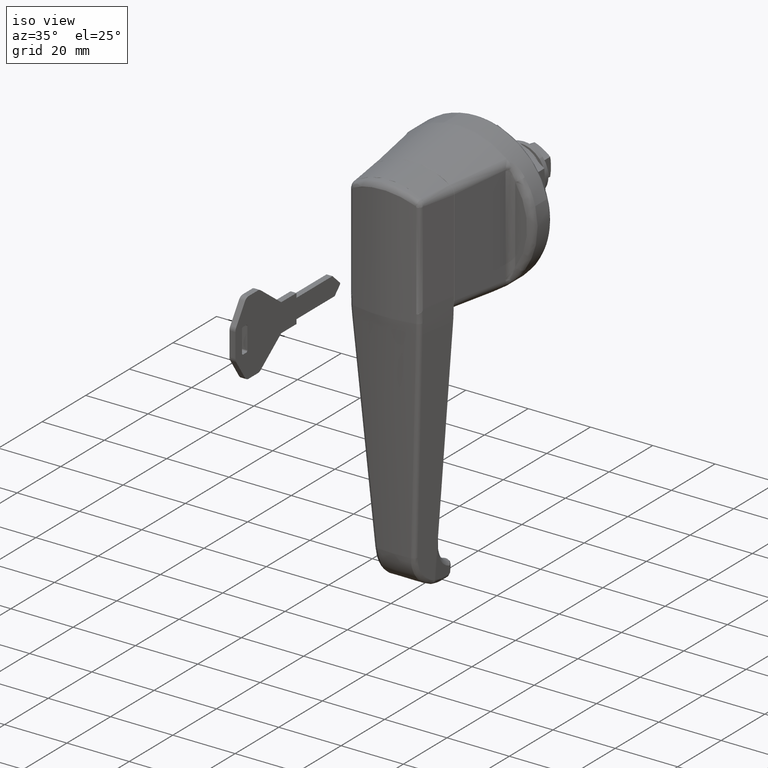
[diagram: clean part render]
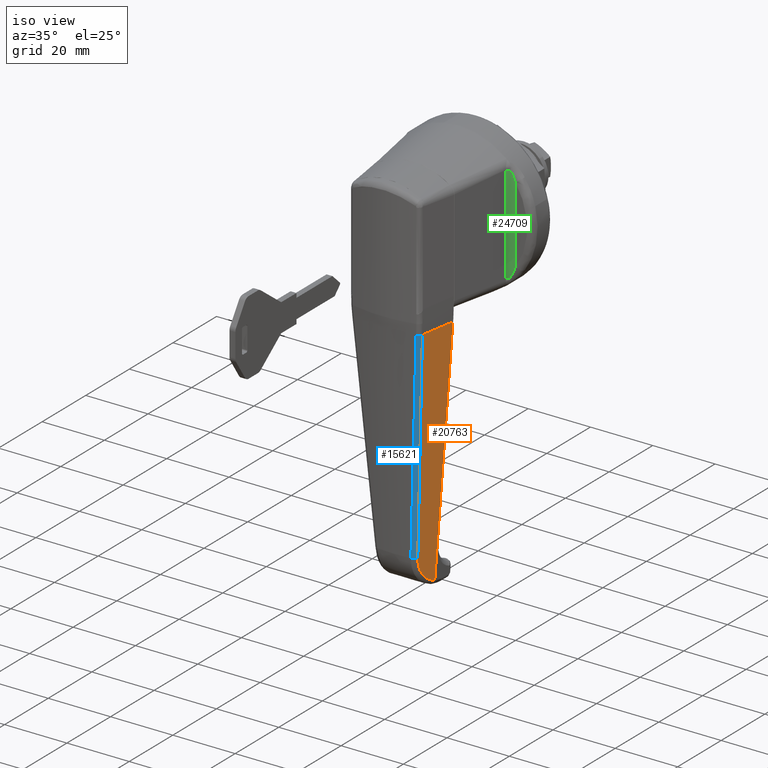
[diagram: same view with three faces highlighted in distinct colors, each labeled with its STEP entity id]
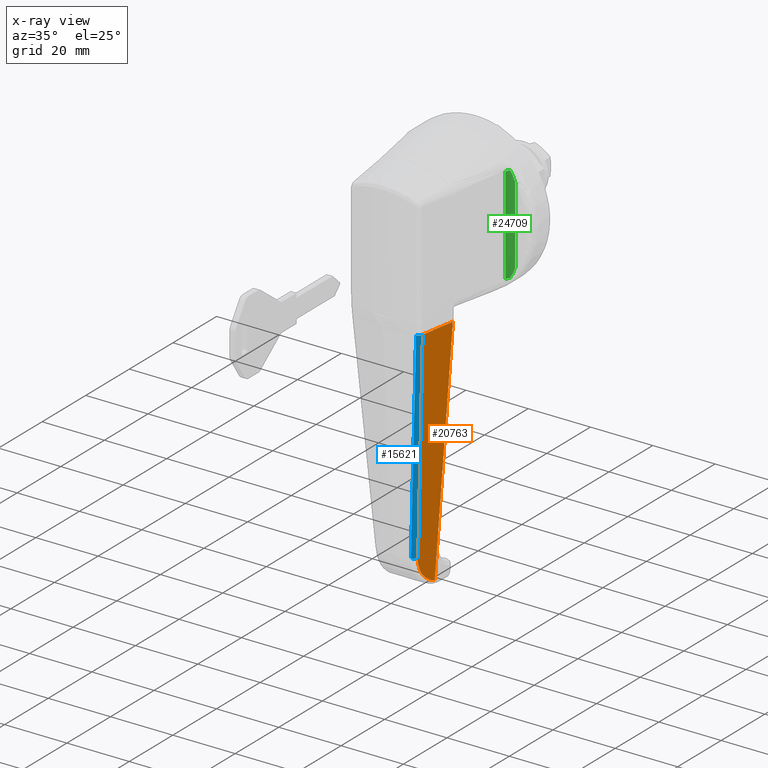
[diagram: x-ray of the same camera — body ghosted, the three highlighted faces saturated]
A machine part, iso view with three faces highlighted in distinct colors.
The next image is the same camera in x-ray (body ghosted, the three faces saturated) — at least one of them is partly hidden behind the body in this view.
Their STEP definitions:

[orange] entity #20763 — the highlighted face is a freeform B-spline surface patch.
#13989=CARTESIAN_POINT('',(-30.115816610478099,-7.131476740235530,-98.037802394413404));
#13990=VERTEX_POINT('',#13989);
#14073=CARTESIAN_POINT('',(-30.115816610478252,-12.947967099860200,-21.472112417346651));
#14074=VERTEX_POINT('',#14073);
#14083=CARTESIAN_POINT('',(-30.115816610478099,-7.131476740235530,-98.037802394413404));
#14084=CARTESIAN_POINT('',(-30.115816610478252,-12.947967099860200,-21.472112417346651));
#14085=QUASI_UNIFORM_CURVE('',1,(#14083,#14084),.UNSPECIFIED.,.F.,.U.);
#14086=EDGE_CURVE('',#13990,#14074,#14085,.T.);
#14305=CARTESIAN_POINT('',(-37.268667890630063,-6.699473645642841,-88.874029851411009));
#14306=VERTEX_POINT('',#14305);
#14351=CARTESIAN_POINT('',(-37.268667890630113,-6.699473645642881,-88.874029851410810));
#14352=CARTESIAN_POINT('',(-37.234511700938903,-6.665577533822186,-89.391136919051164));
#14353=CARTESIAN_POINT('',(-37.161571387783297,-6.638293454256687,-89.901728211658309));
#14354=CARTESIAN_POINT('',(-37.022479209134353,-6.612357350621833,-90.531917254916820));
#14355=CARTESIAN_POINT('',(-36.992252415087179,-6.607580713954900,-90.657550456745014));
#14356=CARTESIAN_POINT('',(-36.926945856935397,-6.598854789331897,-90.908001556139965));
#14357=CARTESIAN_POINT('',(-36.891798357913352,-6.594899631271147,-91.033037353727934));
#14358=CARTESIAN_POINT('',(-36.779530070470692,-6.584337507383488,-91.405159461354472));
#14359=CARTESIAN_POINT('',(-36.695751539933667,-6.579035636826096,-91.648888620982390));
#14360=CARTESIAN_POINT('',(-36.418393369447010,-6.568197463672362,-92.367397651417633));
#14361=CARTESIAN_POINT('',(-36.198927000456699,-6.567702145233937,-92.829565261110830));
#14362=CARTESIAN_POINT('',(-35.818358362706697,-6.576962391219464,-93.497789168199887));
#14363=CARTESIAN_POINT('',(-35.682906253002933,-6.581723039319853,-93.716342467558633));
#14364=CARTESIAN_POINT('',(-35.466576174668411,-6.591425114841250,-94.037764678853193));
#14365=CARTESIAN_POINT('',(-35.392133823109987,-6.595093961845133,-94.144023897451888));
#14366=CARTESIAN_POINT('',(-35.239446113145902,-6.603264433240947,-94.353475677305880));
#14367=CARTESIAN_POINT('',(-35.161396568821800,-6.607754303572170,-94.456416422276718));
#14368=CARTESIAN_POINT('',(-34.762788601264347,-6.632186926722162,-94.962370458368994));
#14369=CARTESIAN_POINT('',(-34.417284290453622,-6.658047503979547,-95.339275815127024));
#14370=CARTESIAN_POINT('',(-33.675057287925704,-6.721919013349146,-96.039482257287133));
#14371=CARTESIAN_POINT('',(-33.278328938604979,-6.759931287594582,-96.362777421539278));
#14372=CARTESIAN_POINT('',(-32.749630798784239,-6.815224740941781,-96.732581333958677));
#14373=CARTESIAN_POINT('',(-32.642247789917612,-6.826674931643870,-96.804800507188105));
#14374=CARTESIAN_POINT('',(-32.425854695826203,-6.850177935034837,-96.944684278108767));
#14375=CARTESIAN_POINT('',(-32.316639904694952,-6.862251891206397,-97.012495554771533));
#14376=CARTESIAN_POINT('',(-31.985987190248149,-6.899426432122554,-97.209634628910692));
#14377=CARTESIAN_POINT('',(-31.761544706008120,-6.925478492188768,-97.332675580208246));
#14378=CARTESIAN_POINT('',(-31.076422190468939,-7.007369897424195,-97.677118040700108));
#14379=CARTESIAN_POINT('',(-30.604003508036389,-7.066926603346877,-97.873957194236880));
#14380=CARTESIAN_POINT('',(-30.115816610478049,-7.131476740235520,-98.037802394413404));
#14381=B_SPLINE_CURVE_WITH_KNOTS('',3,(#14351,#14352,#14353,#14354,#14355,#14356,#14357,#14358,#14359,#14360,#14361,#14362,#14363,#14364,#14365,#14366,#14367,#14368,#14369,#14370,#14371,#14372,#14373,#14374,#14375,#14376,#14377,#14378,#14379,#14380),.UNSPECIFIED.,.F.,.U.,(4,2,2,2,2,2,2,2,2,2,2,2,2,2,4),(0.0,0.124999999999999,0.156249999999999,0.187500000000000,0.250000000000001,0.375000000000006,0.437500000000009,0.468750000000008,0.500000000000008,0.625000000000006,0.750000000000004,0.781250000000003,0.812500000000003,0.875000000000003,1.0),.UNSPECIFIED.);
#14382=EDGE_CURVE('',#14306,#13990,#14381,.T.);
#15349=CARTESIAN_POINT('',(-41.510032861910602,-11.156030345127100,-21.404145801841949));
#15350=VERTEX_POINT('',#15349);
#15605=CARTESIAN_POINT('',(-41.510032861910602,-11.156030345127100,-21.404145801841949));
#15606=CARTESIAN_POINT('',(-39.530309244699815,-8.943894025343081,-54.633948061544835));
#15607=CARTESIAN_POINT('',(-37.268667890630049,-6.699473645642828,-88.874029851410938));
#15615=(BOUNDED_CURVE()B_SPLINE_CURVE(2,(#15605,#15606,#15607),.UNSPECIFIED.,.F.,.U.)CURVE()GEOMETRIC_REPRESENTATION_ITEM()QUASI_UNIFORM_CURVE()RATIONAL_B_SPLINE_CURVE((1.0,0.998918431768087,1.0))REPRESENTATION_ITEM(''));
#15616=EDGE_CURVE('',#15350,#14306,#15615,.T.);
#20748=CARTESIAN_POINT('',(-28.606851601803179,-7.078679563445426,-101.865654831445300));
#20749=CARTESIAN_POINT('',(-41.138476132721273,-5.102187112981529,-101.865654831445300));
#20750=CARTESIAN_POINT('',(-29.592259780949121,-13.326497665586020,-17.576292679651761));
#20751=CARTESIAN_POINT('',(-42.123884311867208,-11.350005215122120,-17.576292679651761));
#20752=B_SPLINE_SURFACE_WITH_KNOTS('',1,1,((#20748,#20750),(#20749,#20751)),.UNSPECIFIED.,.F.,.F.,.U.,(2,2),(2,2),(0.0,12.686533639676711),(0.0,84.526344013409059),.UNSPECIFIED.);
#20753=ORIENTED_EDGE('',*,*,#14382,.T.);
#20754=ORIENTED_EDGE('',*,*,#14086,.T.);
#20755=CARTESIAN_POINT('',(-30.115816610478252,-12.947967099860200,-21.472112417346651));
#20756=CARTESIAN_POINT('',(-41.510032861910602,-11.156030345127100,-21.404145801841949));
#20757=QUASI_UNIFORM_CURVE('',1,(#20755,#20756),.UNSPECIFIED.,.F.,.U.);
#20758=EDGE_CURVE('',#14074,#15350,#20757,.T.);
#20759=ORIENTED_EDGE('',*,*,#20758,.T.);
#20760=ORIENTED_EDGE('',*,*,#15616,.T.);
#20761=EDGE_LOOP('',(#20753,#20754,#20759,#20760));
#20762=FACE_OUTER_BOUND('',#20761,.T.);
#20763=ADVANCED_FACE('',(#20762),#20752,.F.);

[blue] entity #15621 — the highlighted face is a freeform B-spline surface patch.
#14303=CARTESIAN_POINT('',(-38.522935377319541,-5.383446942940070,-88.870612396524308));
#14304=VERTEX_POINT('',#14303);
#14305=CARTESIAN_POINT('',(-37.268667890630063,-6.699473645642841,-88.874029851411009));
#14306=VERTEX_POINT('',#14305);
#14307=CARTESIAN_POINT('',(-38.522935377319541,-5.383446942940070,-88.870612396524308));
#14308=CARTESIAN_POINT('',(-38.498221518907769,-5.605556951390951,-88.883539186478174));
#14309=CARTESIAN_POINT('',(-38.367218872823429,-5.979174200849115,-88.899376565908128));
#14310=CARTESIAN_POINT('',(-38.013395048061057,-6.381818975596802,-88.902398800046640));
#14311=CARTESIAN_POINT('',(-37.644634647636458,-6.605830856878371,-88.892725139167865));
#14312=CARTESIAN_POINT('',(-37.388980990481947,-6.680009213165958,-88.880700942751645));
#14313=CARTESIAN_POINT('',(-37.268667890630063,-6.699473645642841,-88.874029851411009));
#14314=B_SPLINE_CURVE_WITH_KNOTS('',3,(#14307,#14308,#14309,#14310,#14311,#14312,#14313),.UNSPECIFIED.,.F.,.U.,(4,1,1,1,4),(0.000000190302992,0.671432463942115,1.159693123842232,1.586991030517195,1.953202127505940),.UNSPECIFIED.);
#14315=EDGE_CURVE('',#14304,#14306,#14314,.T.);
#15347=CARTESIAN_POINT('',(-42.742906756508162,-9.977835292923841,-21.399162970487851));
#15348=VERTEX_POINT('',#15347);
#15349=CARTESIAN_POINT('',(-41.510032861910602,-11.156030345127100,-21.404145801841949));
#15350=VERTEX_POINT('',#15349);
#15351=CARTESIAN_POINT('',(-42.742906756508162,-9.977835292923841,-21.399162970487851));
#15352=CARTESIAN_POINT('',(-42.716019487649547,-10.107136721640201,-21.406168820949500));
#15353=CARTESIAN_POINT('',(-42.621473431013591,-10.376694288909620,-21.418480751679500));
#15354=CARTESIAN_POINT('',(-42.366244845900439,-10.734438412334990,-21.427090393971248));
#15355=CARTESIAN_POINT('',(-41.985774293219571,-11.023444760447530,-21.423662594473839));
#15356=CARTESIAN_POINT('',(-41.677751368848590,-11.129078156335421,-21.412343695147960));
#15357=CARTESIAN_POINT('',(-41.510032861910602,-11.156030345127100,-21.404145801841949));
#15358=B_SPLINE_CURVE_WITH_KNOTS('',3,(#15351,#15352,#15353,#15354,#15355,#15356,#15357),.UNSPECIFIED.,.F.,.U.,(4,1,1,1,4),(0.000000218921510,0.396798161404612,0.850305664614995,1.303770061182126,1.813944018476610),.UNSPECIFIED.);
#15359=EDGE_CURVE('',#15348,#15350,#15358,.T.);
#15543=CARTESIAN_POINT('',(-37.237125710164825,-6.678496078781409,-89.215655840370360));
#15544=CARTESIAN_POINT('',(-37.244659285805930,-6.685971228269136,-89.101615386005719));
#15545=CARTESIAN_POINT('',(-37.252192868495783,-6.693446384750907,-88.987574824940509));
#15546=CARTESIAN_POINT('',(-38.766586132164804,-8.196094870463741,-66.063255205343651));
#15547=CARTESIAN_POINT('',(-40.182596160035438,-9.683725950383614,-43.540877442115068));
#15548=CARTESIAN_POINT('',(-41.508235625249348,-11.164754178192863,-21.293040498828134));
#15549=CARTESIAN_POINT('',(-41.514831431021108,-11.172123130905497,-21.182344932521243));
#15550=CARTESIAN_POINT('',(-41.521427242582533,-11.179492090086406,-21.071649269048972));
#15551=CARTESIAN_POINT('',(-37.241592153764664,-6.677771570862017,-89.215919885285146));
#15552=CARTESIAN_POINT('',(-37.249125634648081,-6.685247155923113,-89.101873893958825));
#15553=CARTESIAN_POINT('',(-37.256659119059400,-6.692722744485002,-88.987827849225042));
#15554=CARTESIAN_POINT('',(-38.770961142903467,-8.195387151896261,-66.063488072013769));
#15555=CARTESIAN_POINT('',(-40.186880226701362,-9.683033657970618,-43.541096060269759));
#15556=CARTESIAN_POINT('',(-41.512427680134927,-11.164077087263141,-21.293250042672430));
#15557=CARTESIAN_POINT('',(-41.519022736025889,-11.171445789279675,-21.182559333290762));
#15558=CARTESIAN_POINT('',(-41.525617794813904,-11.178814494533103,-21.071868575285524));
#15559=CARTESIAN_POINT('',(-38.372692973169443,-6.494294161380218,-89.282787721577918));
#15560=CARTESIAN_POINT('',(-38.380135264684768,-6.501890945929459,-89.167335637918029));
#15561=CARTESIAN_POINT('',(-38.387576678984004,-6.509486835052640,-89.051897162489880));
#15562=CARTESIAN_POINT('',(-39.865703181290030,-8.018297468364636,-66.121757399420758));
#15563=CARTESIAN_POINT('',(-41.246798416587019,-9.511754035484183,-43.595184237903354));
#15564=CARTESIAN_POINT('',(-42.538350872216121,-10.998372365619550,-21.344531787665975));
#15565=CARTESIAN_POINT('',(-42.544707149699768,-11.005688645014498,-21.235026888697721));
#15566=CARTESIAN_POINT('',(-42.551062747933912,-11.013004142571472,-21.125533691727682));
#15567=CARTESIAN_POINT('',(-38.500917636084395,-5.355819356173474,-89.212494289567957));
#15568=CARTESIAN_POINT('',(-38.508426338986169,-5.363526767493478,-89.098446464202667));
#15569=CARTESIAN_POINT('',(-38.515935045405115,-5.371234182423731,-88.984398585415903));
#15570=CARTESIAN_POINT('',(-40.025256474703198,-6.920497913040206,-66.059689878670724));
#15571=CARTESIAN_POINT('',(-41.434062004667204,-8.454283796238441,-43.536773060214266));
#15572=CARTESIAN_POINT('',(-42.750322664999409,-9.981267222526808,-21.288243273175141));
#15573=CARTESIAN_POINT('',(-42.756871515962430,-9.988864491960708,-21.177549160593237));
#15574=CARTESIAN_POINT('',(-42.763420369802937,-9.996461764732715,-21.066854999374286));
#15575=CARTESIAN_POINT('',(-38.501424088396405,-5.351322692394742,-89.212216649757053));
#15576=CARTESIAN_POINT('',(-38.508933083708612,-5.359030273541825,-89.098174354662660));
#15577=CARTESIAN_POINT('',(-38.516442086048265,-5.366737861902196,-88.984131952839590));
#15578=CARTESIAN_POINT('',(-40.025894267435213,-6.916109607649243,-66.059441772142861));
#15579=CARTESIAN_POINT('',(-41.434819088008453,-8.450008575891713,-43.536536911104776));
#15580=CARTESIAN_POINT('',(-42.751189021562034,-9.977110180195579,-21.288013214622108));
#15581=CARTESIAN_POINT('',(-42.757738706316523,-9.984708374169252,-21.177314228911431));
#15582=CARTESIAN_POINT('',(-42.764288396821520,-9.992306574814039,-21.066615146008370));
#15590=(BOUNDED_SURFACE()B_SPLINE_SURFACE(3,2,((#15543,#15551,#15559,#15567,#15575),(#15544,#15552,#15560,#15568,#15576),(#15545,#15553,#15561,#15569,#15577),(#15546,#15554,#15562,#15570,#15578),(#15547,#15555,#15563,#15571,#15579),(#15548,#15556,#15564,#15572,#15580),(#15549,#15557,#15565,#15573,#15581),(#15550,#15558,#15566,#15574,#15582)),.UNSPECIFIED.,.F.,.F.,.U.)B_SPLINE_SURFACE_WITH_KNOTS((4,2,2,4),(3,1,1,3),(0.0,0.345510551890762,69.447622474601033,69.793133026491304),(0.0,0.010129404798273,2.036007908977302,2.046139814565227),.UNSPECIFIED.)GEOMETRIC_REPRESENTATION_ITEM()RATIONAL_B_SPLINE_SURFACE(((1.002046762988405,1.001023381494202,0.795323949238071,1.001023634150889,1.002047268301778),(1.002046294212043,1.001023147106021,0.795370826817491,1.001023399704841,1.002046799409682),(1.002045825435680,1.001022912717840,0.795417704396912,1.001023165258793,1.002046330517586),(1.001951601384745,1.000975800692373,0.804840098069982,1.000976041602112,1.001952083204225),(1.001860707936003,1.000930353968002,0.813929431927400,1.000930583657665,1.001861167315329),(1.001772335633721,1.000886167816861,0.822766651444375,1.000886386597663,1.001772773195326),(1.001771895970536,1.000885947985268,0.822810617709651,1.000886166711797,1.001772333423594),(1.001771456307350,1.000885728153675,0.822854583974926,1.000885946825931,1.001771893651863)))REPRESENTATION_ITEM('')SURFACE());
#15591=CARTESIAN_POINT('',(-38.522935377319541,-5.383446942940070,-88.870612396524308));
#15592=CARTESIAN_POINT('',(-40.777079227849484,-7.697282385930354,-54.629982011748901));
#15593=CARTESIAN_POINT('',(-42.742906756508162,-9.977835292923841,-21.399162970487851));
#15601=(BOUNDED_CURVE()B_SPLINE_CURVE(2,(#15591,#15592,#15593),.UNSPECIFIED.,.F.,.U.)CURVE()GEOMETRIC_REPRESENTATION_ITEM()QUASI_UNIFORM_CURVE()RATIONAL_B_SPLINE_CURVE((1.0,0.998918431768048,1.0))REPRESENTATION_ITEM(''));
#15602=EDGE_CURVE('',#14304,#15348,#15601,.T.);
#15603=ORIENTED_EDGE('',*,*,#15602,.F.);
#15604=ORIENTED_EDGE('',*,*,#14315,.T.);
#15605=CARTESIAN_POINT('',(-41.510032861910602,-11.156030345127100,-21.404145801841949));
#15606=CARTESIAN_POINT('',(-39.530309244699815,-8.943894025343081,-54.633948061544835));
#15607=CARTESIAN_POINT('',(-37.268667890630049,-6.699473645642828,-88.874029851410938));
#15615=(BOUNDED_CURVE()B_SPLINE_CURVE(2,(#15605,#15606,#15607),.UNSPECIFIED.,.F.,.U.)CURVE()GEOMETRIC_REPRESENTATION_ITEM()QUASI_UNIFORM_CURVE()RATIONAL_B_SPLINE_CURVE((1.0,0.998918431768087,1.0))REPRESENTATION_ITEM(''));
#15616=EDGE_CURVE('',#15350,#14306,#15615,.T.);
#15617=ORIENTED_EDGE('',*,*,#15616,.F.);
#15618=ORIENTED_EDGE('',*,*,#15359,.F.);
#15619=EDGE_LOOP('',(#15603,#15604,#15617,#15618));
#15620=FACE_OUTER_BOUND('',#15619,.T.);
#15621=ADVANCED_FACE('',(#15620),#15590,.T.);

[green] entity #24709 — the highlighted face is a freeform B-spline surface patch.
#23645=CARTESIAN_POINT('',(-9.0,-18.214367857161601,-12.338427921092579));
#23646=VERTEX_POINT('',#23645);
#23658=CARTESIAN_POINT('',(-9.538265775147300,-16.849328276821801,-15.628077410993299));
#23659=VERTEX_POINT('',#23658);
#23660=CARTESIAN_POINT('',(-9.538265775147300,-16.849328276821801,-15.628077410993299));
#23661=CARTESIAN_POINT('',(-9.479343540917173,-16.912424356686039,-15.503046303130111));
#23662=CARTESIAN_POINT('',(-9.428121561478310,-16.975351562211980,-15.375312474083479));
#23663=CARTESIAN_POINT('',(-9.337264672987585,-17.100242892471819,-15.115439620415870));
#23664=CARTESIAN_POINT('',(-9.297663012976106,-17.162212819953080,-14.983292041964731));
#23665=CARTESIAN_POINT('',(-9.227729767721215,-17.284830518755360,-14.715209382234340));
#23666=CARTESIAN_POINT('',(-9.197458739021194,-17.345425396081161,-14.579376786982619));
#23667=CARTESIAN_POINT('',(-9.144892840534990,-17.464172265931381,-14.306491572769430));
#23668=CARTESIAN_POINT('',(-9.122528787336250,-17.522457508241459,-14.169151556969391));
#23669=CARTESIAN_POINT('',(-9.065103357175561,-17.694053218810708,-13.754686375052509));
#23670=CARTESIAN_POINT('',(-9.039607650166325,-17.804100736040319,-13.475126753863909));
#23671=CARTESIAN_POINT('',(-9.007016933211888,-18.015682750886921,-12.910425391445029));
#23672=CARTESIAN_POINT('',(-9.000000000000002,-18.117274253986750,-12.625093064515120));
#23673=CARTESIAN_POINT('',(-9.0,-18.214367857161601,-12.338427921092601));
#23674=B_SPLINE_CURVE_WITH_KNOTS('',3,(#23660,#23661,#23662,#23663,#23664,#23665,#23666,#23667,#23668,#23669,#23670,#23671,#23672,#23673),.UNSPECIFIED.,.F.,.U.,(4,2,2,2,2,2,4),(0.0,0.125000000000000,0.250000000000001,0.375000000000001,0.500000000000001,0.750000000000001,1.0),.UNSPECIFIED.);
#23675=EDGE_CURVE('',#23659,#23646,#23674,.T.);
#23704=CARTESIAN_POINT('',(-9.0,-18.214367857161601,12.338427921092579));
#23705=VERTEX_POINT('',#23704);
#23824=CARTESIAN_POINT('',(-9.538265775147291,-16.849328276821801,15.628077410993299));
#23825=VERTEX_POINT('',#23824);
#23835=CARTESIAN_POINT('',(-9.0,-18.214367857161601,12.338427921092579));
#23836=CARTESIAN_POINT('',(-9.000000000000002,-18.117274253986739,12.625093064515100));
#23837=CARTESIAN_POINT('',(-9.007016933211888,-18.015682750886921,12.910425391445029));
#23838=CARTESIAN_POINT('',(-9.039607650166325,-17.804100736040319,13.475126753863909));
#23839=CARTESIAN_POINT('',(-9.065103357175559,-17.694053218810701,13.754686375052520));
#23840=CARTESIAN_POINT('',(-9.122528787336252,-17.522457508241459,14.169151556969400));
#23841=CARTESIAN_POINT('',(-9.144892840534991,-17.464172265931388,14.306491572769440));
#23842=CARTESIAN_POINT('',(-9.197458739021199,-17.345425396081151,14.579376786982630));
#23843=CARTESIAN_POINT('',(-9.227729767721216,-17.284830518755360,14.715209382234340));
#23844=CARTESIAN_POINT('',(-9.297663012976104,-17.162212819953069,14.983292041964731));
#23845=CARTESIAN_POINT('',(-9.337264672987587,-17.100242892471840,15.115439620415870));
#23846=CARTESIAN_POINT('',(-9.428121561478308,-16.975351562211980,15.375312474083479));
#23847=CARTESIAN_POINT('',(-9.479343540917167,-16.912424356686032,15.503046303130111));
#23848=CARTESIAN_POINT('',(-9.538265775147291,-16.849328276821801,15.628077410993299));
#23849=B_SPLINE_CURVE_WITH_KNOTS('',3,(#23835,#23836,#23837,#23838,#23839,#23840,#23841,#23842,#23843,#23844,#23845,#23846,#23847,#23848),.UNSPECIFIED.,.F.,.U.,(4,2,2,2,2,2,4),(0.0,0.250000000000000,0.500000000000000,0.625000000000000,0.750000000000000,0.875000000000000,1.0),.UNSPECIFIED.);
#23850=EDGE_CURVE('',#23705,#23825,#23849,.T.);
#24650=CARTESIAN_POINT('',(-10.694119587181600,-16.237896968670150,-15.628077410993299));
#24651=VERTEX_POINT('',#24650);
#24652=CARTESIAN_POINT('',(-9.538265775147300,-16.849328276821801,-15.628077410993299));
#24653=CARTESIAN_POINT('',(-9.727440008139677,-16.646171008606480,-15.628077410993299));
#24654=CARTESIAN_POINT('',(-10.099272586250930,-16.386348656709039,-15.628077410993271));
#24655=CARTESIAN_POINT('',(-10.529559988056320,-16.263333971277842,-15.628077410993340));
#24656=CARTESIAN_POINT('',(-10.694119587181600,-16.237896968670150,-15.628077410993299));
#24657=B_SPLINE_CURVE_WITH_KNOTS('',3,(#24652,#24653,#24654,#24655,#24656),.UNSPECIFIED.,.F.,.U.,(4,1,4),(0.000000061920674,0.832565921577420,1.332121530724416),.UNSPECIFIED.);
#24658=EDGE_CURVE('',#23659,#24651,#24657,.T.);
#24670=CARTESIAN_POINT('',(-10.773593572464190,-16.227224145808432,-16.409481281542970));
#24671=CARTESIAN_POINT('',(-10.773593572464190,-16.227224145808432,16.429016378306709));
#24672=CARTESIAN_POINT('',(-8.881040302412711,-16.442853353875009,-16.409481281542966));
#24673=CARTESIAN_POINT('',(-8.881040302412711,-16.442853353875009,16.429016378306713));
#24674=CARTESIAN_POINT('',(-9.004183891870582,-18.343666204139179,-16.409481281542966));
#24675=CARTESIAN_POINT('',(-9.004183891870582,-18.343666204139179,16.429016378306716));
#24683=(BOUNDED_SURFACE()B_SPLINE_SURFACE(1,2,((#24670,#24672,#24674),(#24671,#24673,#24675)),.UNSPECIFIED.,.F.,.F.,.U.)B_SPLINE_SURFACE_WITH_KNOTS((2,2),(3,3),(0.0,32.838497659849679),(0.0,3.200036288902206),.UNSPECIFIED.)GEOMETRIC_REPRESENTATION_ITEM()RATIONAL_B_SPLINE_SURFACE(((1.0,0.722129020959931,0.994476997695228),(1.0,0.722129020959931,0.994476997695228)))REPRESENTATION_ITEM('')SURFACE());
#24684=ORIENTED_EDGE('',*,*,#24658,.F.);
#24685=ORIENTED_EDGE('',*,*,#23675,.T.);
#24686=CARTESIAN_POINT('',(-9.0,-18.214367857161601,12.338427921092579));
#24687=CARTESIAN_POINT('',(-9.0,-18.214367857161601,-12.338427921092579));
#24688=QUASI_UNIFORM_CURVE('',1,(#24686,#24687),.UNSPECIFIED.,.F.,.U.);
#24689=EDGE_CURVE('',#23705,#23646,#24688,.T.);
#24690=ORIENTED_EDGE('',*,*,#24689,.F.);
#24691=ORIENTED_EDGE('',*,*,#23850,.T.);
#24692=CARTESIAN_POINT('',(-10.694119587181600,-16.237896968670150,15.628077410993299));
#24693=VERTEX_POINT('',#24692);
#24694=CARTESIAN_POINT('',(-9.538265775147291,-16.849328276821801,15.628077410993299));
#24695=CARTESIAN_POINT('',(-9.670815331755291,-16.707302171743130,15.628077410993310));
#24696=CARTESIAN_POINT('',(-10.021538885534961,-16.427329885533741,15.628077410993271));
#24697=CARTESIAN_POINT('',(-10.447221671034990,-16.275869017394889,15.628077410993320));
#24698=CARTESIAN_POINT('',(-10.694119587181600,-16.237896968670150,15.628077410993299));
#24699=B_SPLINE_CURVE_WITH_KNOTS('',3,(#24694,#24695,#24696,#24697,#24698),.UNSPECIFIED.,.F.,.U.,(4,1,4),(0.000000061920552,0.582812083681540,1.332121530724429),.UNSPECIFIED.);
#24700=EDGE_CURVE('',#23825,#24693,#24699,.T.);
#24701=ORIENTED_EDGE('',*,*,#24700,.T.);
#24702=CARTESIAN_POINT('',(-10.694119587181600,-16.237896968670150,-15.628077410993299));
#24703=CARTESIAN_POINT('',(-10.694119587181600,-16.237896968670150,15.628077410993299));
#24704=QUASI_UNIFORM_CURVE('',1,(#24702,#24703),.UNSPECIFIED.,.F.,.U.);
#24705=EDGE_CURVE('',#24651,#24693,#24704,.T.);
#24706=ORIENTED_EDGE('',*,*,#24705,.F.);
#24707=EDGE_LOOP('',(#24684,#24685,#24690,#24691,#24701,#24706));
#24708=FACE_OUTER_BOUND('',#24707,.T.);
#24709=ADVANCED_FACE('',(#24708),#24683,.F.);